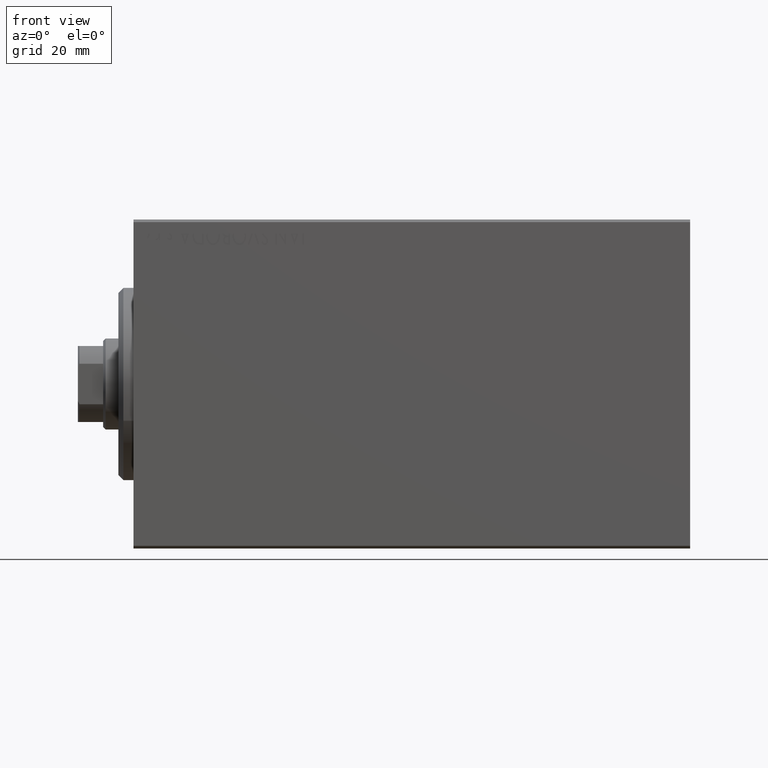
[diagram: clean part render]
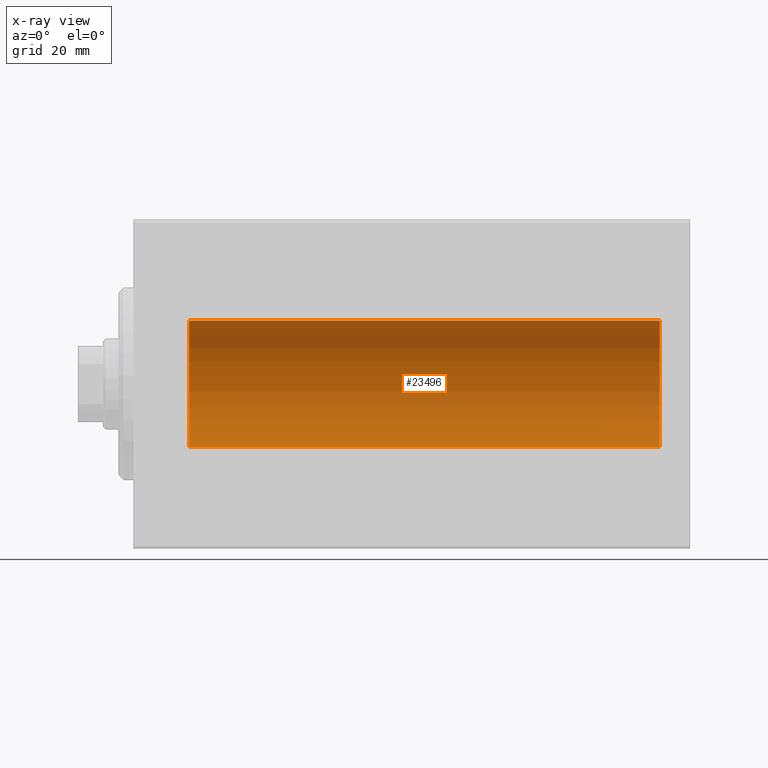
[diagram: x-ray — body ghosted, one internal face saturated and labeled with its STEP entity id]
A machine part, front view, then the same camera in x-ray: the body is ghosted and one INTERNAL B-rep face — a face not visible from any outside direction — is saturated and labeled: STEP entity #23496.
In plain terms, the highlighted cylindrical surface (partial cylindrical patch) has radius 12.5 mm, axis along (-1, -0, -0).
Its self-contained STEP definition (entity closure, byte-faithful):
#161 = CARTESIAN_POINT ( 'NONE',  ( 104.0000000000000000, 1.530808498934191127E-15, -12.50000000000000000 ) ) ;
#505 = CARTESIAN_POINT ( 'NONE',  ( 104.0000000000000000, 0.000000000000000000, 0.000000000000000000 ) ) ;
#2318 = LINE ( 'NONE', #23118, #27273 ) ;
#2493 = CIRCLE ( 'NONE', #15214, 12.50000000000000000 ) ;
#6150 = FACE_OUTER_BOUND ( 'NONE', #41543, .T. ) ;
#6595 = LINE ( 'NONE', #161, #36676 ) ;
#6751 = VERTEX_POINT ( 'NONE', #11683 ) ;
#6867 = VERTEX_POINT ( 'NONE', #26688 ) ;
#8142 = AXIS2_PLACEMENT_3D ( 'NONE', #505, #27717, #41692 ) ;
#8198 = EDGE_CURVE ( 'NONE', #28926, #6867, #2318, .T. ) ;
#11683 = CARTESIAN_POINT ( 'NONE',  ( 10.99999999999999645, 1.530808498934191127E-15, -12.50000000000000000 ) ) ;
#13227 = DIRECTION ( 'NONE',  ( -1.000000000000000000, -0.000000000000000000, -0.000000000000000000 ) ) ;
#14337 = EDGE_CURVE ( 'NONE', #20621, #6751, #6595, .T. ) ;
#14970 = CARTESIAN_POINT ( 'NONE',  ( 104.0000000000000000, 1.530808498934191127E-15, -12.50000000000000000 ) ) ;
#15214 = AXIS2_PLACEMENT_3D ( 'NONE', #30180, #23960, #37271 ) ;
#17560 = ORIENTED_EDGE ( 'NONE', *, *, #14337, .F. ) ;
#17682 = ORIENTED_EDGE ( 'NONE', *, *, #43802, .T. ) ;
#19137 = DIRECTION ( 'NONE',  ( -1.000000000000000000, -0.000000000000000000, -0.000000000000000000 ) ) ;
#19415 = CYLINDRICAL_SURFACE ( 'NONE', #31808, 12.50000000000000000 ) ;
#20621 = VERTEX_POINT ( 'NONE', #14970 ) ;
#20800 = ORIENTED_EDGE ( 'NONE', *, *, #43829, .F. ) ;
#23118 = CARTESIAN_POINT ( 'NONE',  ( 104.0000000000000000, 0.000000000000000000, 12.50000000000000000 ) ) ;
#23496 = ADVANCED_FACE ( 'NONE', ( #6150 ), #19415, .F. ) ;
#23960 = DIRECTION ( 'NONE',  ( -1.000000000000000000, 0.000000000000000000, 0.000000000000000000 ) ) ;
#26688 = CARTESIAN_POINT ( 'NONE',  ( 10.99999999999999645, 0.000000000000000000, 12.50000000000000000 ) ) ;
#27273 = VECTOR ( 'NONE', #19137, 1000.000000000000000 ) ;
#27717 = DIRECTION ( 'NONE',  ( -1.000000000000000000, 0.000000000000000000, 0.000000000000000000 ) ) ;
#28926 = VERTEX_POINT ( 'NONE', #36192 ) ;
#29349 = CIRCLE ( 'NONE', #8142, 12.50000000000000000 ) ;
#29822 = DIRECTION ( 'NONE',  ( 0.000000000000000000, 0.000000000000000000, 1.000000000000000000 ) ) ;
#30045 = CARTESIAN_POINT ( 'NONE',  ( 104.0000000000000000, 0.000000000000000000, 0.000000000000000000 ) ) ;
#30180 = CARTESIAN_POINT ( 'NONE',  ( 10.99999999999999645, 0.000000000000000000, 0.000000000000000000 ) ) ;
#30916 = DIRECTION ( 'NONE',  ( -1.000000000000000000, -0.000000000000000000, -0.000000000000000000 ) ) ;
#31808 = AXIS2_PLACEMENT_3D ( 'NONE', #30045, #13227, #29822 ) ;
#35873 = ORIENTED_EDGE ( 'NONE', *, *, #8198, .T. ) ;
#36192 = CARTESIAN_POINT ( 'NONE',  ( 104.0000000000000000, 0.000000000000000000, 12.50000000000000000 ) ) ;
#36676 = VECTOR ( 'NONE', #30916, 1000.000000000000000 ) ;
#37271 = DIRECTION ( 'NONE',  ( 0.000000000000000000, 0.000000000000000000, 1.000000000000000000 ) ) ;
#41543 = EDGE_LOOP ( 'NONE', ( #17560, #20800, #35873, #17682 ) ) ;
#41692 = DIRECTION ( 'NONE',  ( 0.000000000000000000, 0.000000000000000000, 1.000000000000000000 ) ) ;
#43802 = EDGE_CURVE ( 'NONE', #6867, #6751, #2493, .T. ) ;
#43829 = EDGE_CURVE ( 'NONE', #28926, #20621, #29349, .T. ) ;